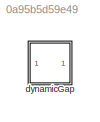
MODEL slx_0a95b5d59e49
KIND model
CONFIG AbsTol = auto
CONFIG EnableMultiTasking = off
CONFIG FixedStep = auto
CONFIG MaxStep = auto
CONFIG MinStep = auto
CONFIG RelTol = 1e-3
CONFIG SampleTimeConstraint = Unconstrained
CONFIG SolverName = VariableStepAuto
CONFIG StartTime = 0.0
CONFIG StopTime = 10.0
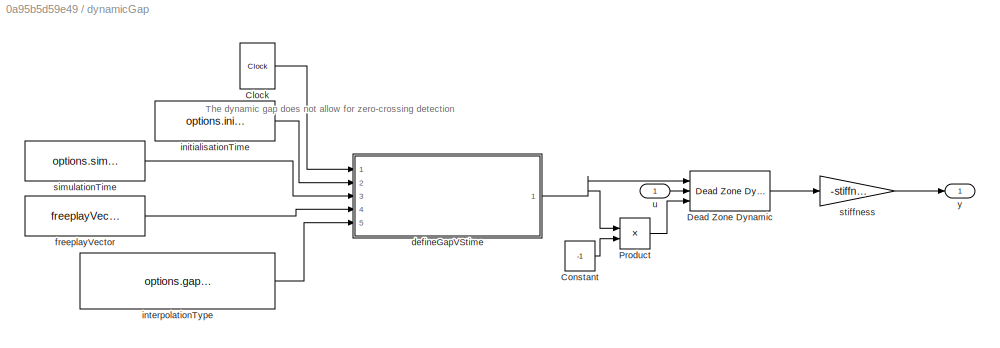
BLOCK [SubSystem] dynamicGap
  Ports = [1, 1]
  RequestExecContextInheritance = off
BLOCK [Clock] dynamicGap/Clock
BLOCK [Constant] dynamicGap/Constant
  Value = -1
BLOCK [Reference] dynamicGap/Dead Zone Dynamic  REF=simulink/Discontinuities/Dead Zone
Dynamic
  Ports = [3, 1]
  SourceBlock = simulink/Discontinuities/Dead Zone\nDynamic
  SourceProductBaseCode = SL
  SourceType = Dead Zone Dynamic
BLOCK [Product] dynamicGap/Product
  Ports = [2, 1]
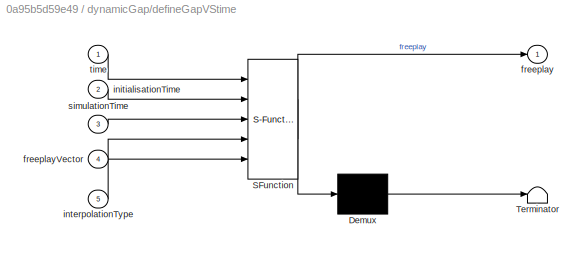
BLOCK [SubSystem] dynamicGap/defineGapVStime
  ErrorFcn = Stateflow.Translate.translate
  PermitHierarchicalResolution = ExplicitOnly
  Ports = [5, 1]
  RequestExecContextInheritance = off
  SFBlockType = MATLAB Function
  TreatAsAtomicUnit = on
BLOCK [Demux] dynamicGap/defineGapVStime/ Demux 
  Outputs = 1
  Ports = [1, 1]
BLOCK [S-Function] dynamicGap/defineGapVStime/ SFunction 
  EnableBusSupport = on
  FunctionName = sf_sfun
  PortCounts = [5 2]
  Ports = [5, 2]
  SFcnIsStateOwnerBlock = off
  SFunctionDeploymentMode = off
  Tag = Stateflow S-Function 1
BLOCK [Terminator] dynamicGap/defineGapVStime/ Terminator 
BLOCK [Outport] dynamicGap/defineGapVStime/freeplay
BLOCK [Inport] dynamicGap/defineGapVStime/freeplayVector
  Port = 4
BLOCK [Inport] dynamicGap/defineGapVStime/initialisationTime
  Port = 2
BLOCK [Inport] dynamicGap/defineGapVStime/interpolationType
  Port = 5
BLOCK [Inport] dynamicGap/defineGapVStime/simulationTime
  Port = 3
BLOCK [Inport] dynamicGap/defineGapVStime/time
BLOCK [Constant] dynamicGap/freeplayVector
  Value = freeplayVector{1}
BLOCK [Constant] dynamicGap/initialisationTime
  Value = options.initialisationTime
BLOCK [Constant] dynamicGap/interpolationType
  Value = options.gapInterpolationType(1)
BLOCK [Constant] dynamicGap/simulationTime
  Value = options.simulationTime
BLOCK [Gain] dynamicGap/stiffness
  Gain = -stiffness
BLOCK [Inport] dynamicGap/u
BLOCK [Outport] dynamicGap/y
ANNOTATION dynamicGap: The dynamic gap does not allow for zero-crossing detection
LINE dynamicGap/Clock:1 -> dynamicGap/defineGapVStime:1
LINE dynamicGap/Constant:1 -> dynamicGap/Product:2
LINE dynamicGap/Dead Zone Dynamic:1 -> dynamicGap/stiffness:1
LINE dynamicGap/Product:1 -> dynamicGap/Dead Zone Dynamic:3
NET dynamicGap/defineGapVStime:1 -> dynamicGap/Dead Zone Dynamic:1, dynamicGap/Product:1
LINE dynamicGap/freeplayVector:1 -> dynamicGap/defineGapVStime:4
LINE dynamicGap/initialisationTime:1 -> dynamicGap/defineGapVStime:2
LINE dynamicGap/interpolationType:1 -> dynamicGap/defineGapVStime:5
LINE dynamicGap/simulationTime:1 -> dynamicGap/defineGapVStime:3
LINE dynamicGap/stiffness:1 -> dynamicGap/y:1
LINE dynamicGap/u:1 -> dynamicGap/Dead Zone Dynamic:2
note: NET lines group one-source signal fan-out (src -> all destinations, sorted); 1:1 wires keep LINE
CHART dynamicGap/defineGapVStime states=1 transitions=1
  STATE_LABEL 'eML_blk_kernel()'
  STATE_LABEL 'SCRIPT:\nfunction freeplay = fcn(time,initialisationTime,simulationTime,freeplayVector,interpolationType)\n\nfreeplayVector = reshape(freeplayVector,1,length(freeplayVector));\n\nif time<=initialisationTime\n    freeplay = freeplayVector(1)/2;\nelse\n    if interpolationType==0\n        endGap = freeplayVector(end);\n        freeplay = interp1(linspace(initialisationTime,simulationTime,length(freeplayVector...<+414ch>'
CHART  states=0 transitions=0
